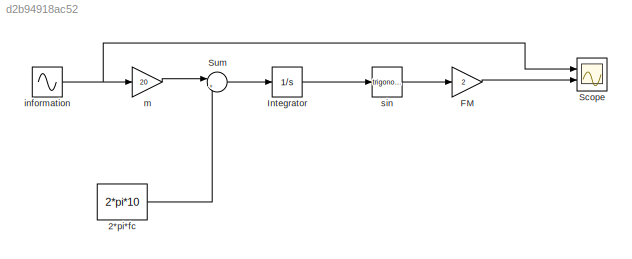
MODEL slx_d2b94918ac52
KIND model
CONFIG AbsTol = auto
CONFIG EnableMultiTasking = off
CONFIG FixedStep = auto
CONFIG MaxStep = 0.001
CONFIG MinStep = auto
CONFIG RelTol = 1e-3
CONFIG SampleTimeConstraint = Unconstrained
CONFIG SolverName = VariableStepAuto
CONFIG StartTime = 0.0
CONFIG StopTime = 10.0
BLOCK [Constant] 2*pi*fc
  Value = 2*pi*10
BLOCK [Gain] FM
  Gain = 2
BLOCK [Integrator] Integrator
  Ports = [1, 1]
BLOCK [Scope] Scope
  Floating = off
  NumInputPorts = 2
  Ports = [2]
  ScopeSpecificationString = Simulink.scopes.TimeScopeBlockCfg('CurrentConfiguration', extmgr.ConfigurationSet(extmgr.Configuration('Core','General UI',true),extmgr.Configuration('Core','Source UI',true),extmgr.Configuration('Sources','WiredSimulink',true),extmgr.Configuration('Visuals','Time Domain',true,'SerializedDisplays',{struct('MinYLimReal','-1.24999','MaxYLimReal','1.24999','YLabelReal','','MinYLimMag','0.00000','MaxY...<+2007ch>
BLOCK [Sum] Sum
  Inputs = |++
  Ports = [2, 1]
BLOCK [Sin] information
  Frequency = 2*pi
  Ports = [0, 1]
  SampleTime = 0
BLOCK [Gain] m
  Gain = 20
BLOCK [Trigonometry] sin
  Ports = [1, 1]
LINE 2*pi*fc:1 -> Sum:2
LINE FM:1 -> Scope:2
LINE Integrator:1 -> sin:1
LINE Sum:1 -> Integrator:1
NET information:1 -> Scope:1, m:1
LINE m:1 -> Sum:1
LINE sin:1 -> FM:1
note: NET lines group one-source signal fan-out (src -> all destinations, sorted); 1:1 wires keep LINE
